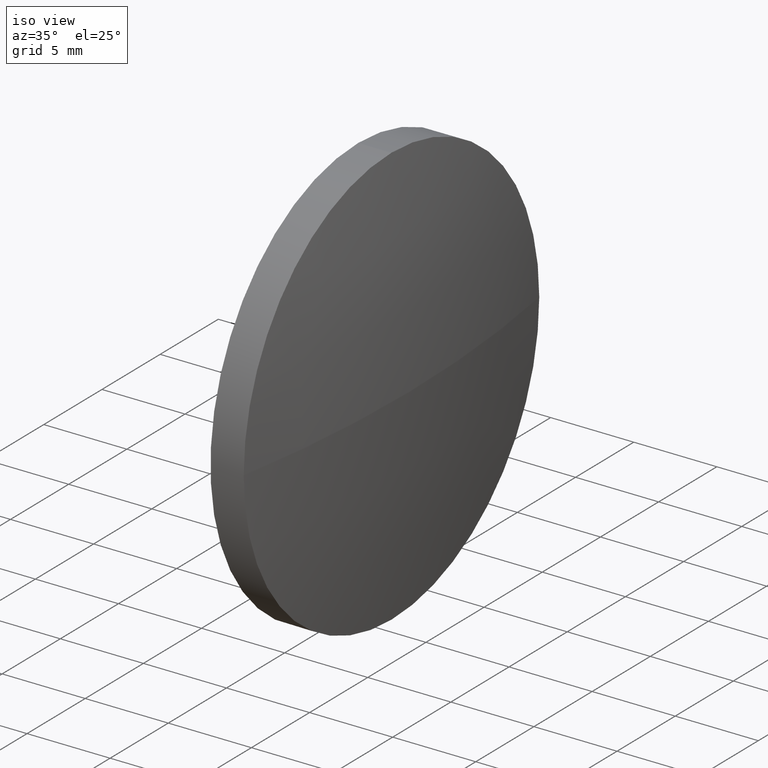
[diagram: clean part render]
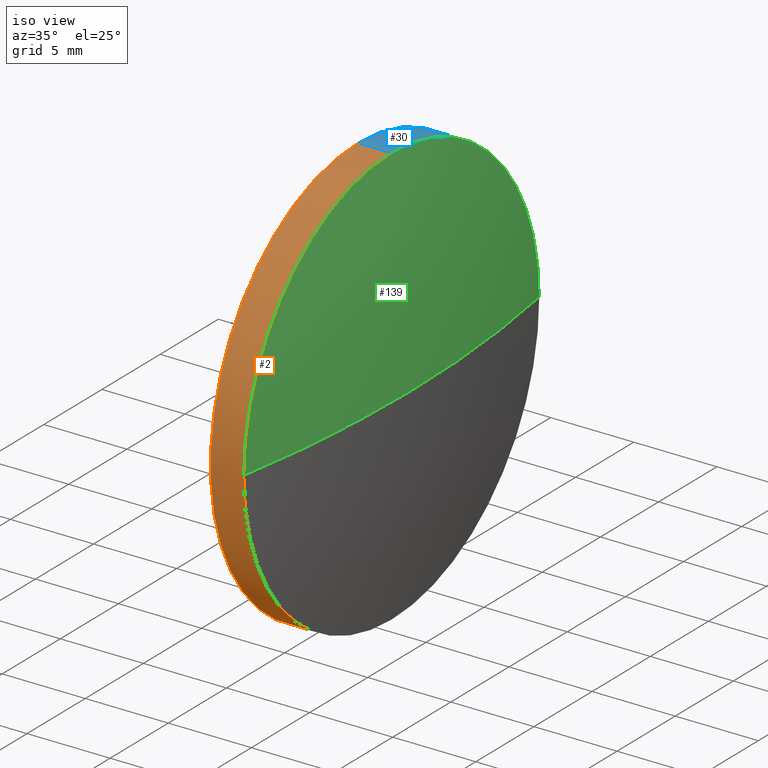
[diagram: same view with three faces highlighted in distinct colors, each labeled with its STEP entity id]
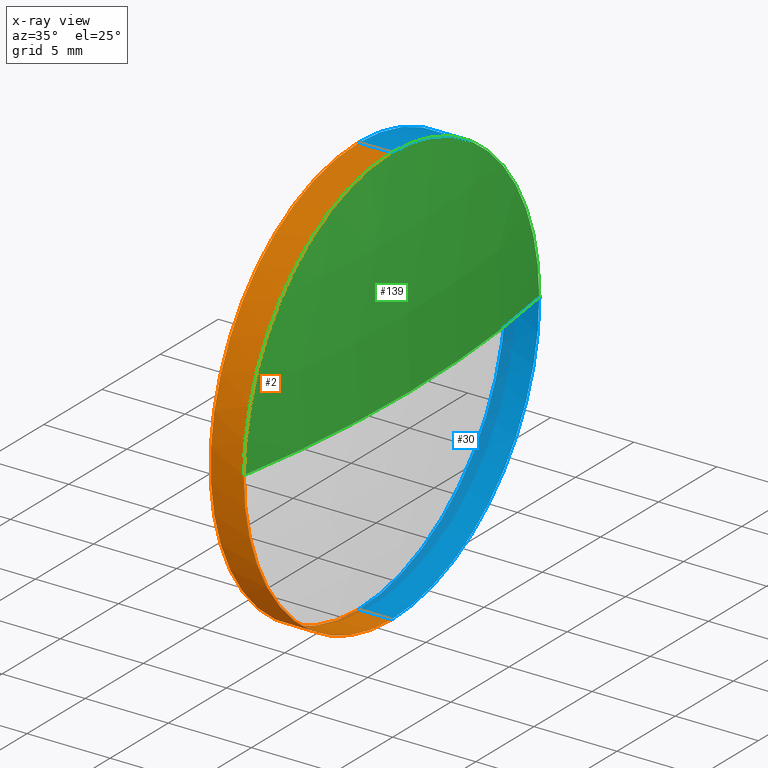
[diagram: x-ray of the same camera — body ghosted, the three highlighted faces saturated]
A machine part, iso view with three faces highlighted in distinct colors.
The next image is the same camera in x-ray (body ghosted, the three faces saturated) — at least one of them is partly hidden behind the body in this view.
Their STEP definitions:

[orange] entity #2 — the highlighted cylindrical surface (partial cylindrical patch) has radius 12.7 mm, axis along (-1, -0, -0).
#2 = ADVANCED_FACE ( 'NONE', ( #72 ), #60, .T. ) ;
#11 = DIRECTION ( 'NONE',  ( -1.000000000000000000, -0.0000000000000000000, -0.0000000000000000000 ) ) ;
#17 = AXIS2_PLACEMENT_3D ( 'NONE', #151, #38, #121 ) ;
#31 = AXIS2_PLACEMENT_3D ( 'NONE', #34, #47, #96 ) ;
#32 = LINE ( 'NONE', #157, #95 ) ;
#33 = AXIS2_PLACEMENT_3D ( 'NONE', #55, #11, #51 ) ;
#34 = CARTESIAN_POINT ( 'NONE',  ( 117.7645554762012000, 65.23355492641219700, 0.0000000000000000000 ) ) ;
#37 = EDGE_CURVE ( 'NONE', #64, #59, #172, .T. ) ;
#38 = DIRECTION ( 'NONE',  ( -1.000000000000000000, -0.0000000000000000000, -0.0000000000000000000 ) ) ;
#39 = CARTESIAN_POINT ( 'NONE',  ( 110.1653732284884500, 65.23355492641219700, 12.70000000000000300 ) ) ;
#40 = DIRECTION ( 'NONE',  ( -1.000000000000000000, -0.0000000000000000000, -0.0000000000000000000 ) ) ;
#42 = VECTOR ( 'NONE', #70, 1000.000000000000000 ) ;
#47 = DIRECTION ( 'NONE',  ( -1.000000000000000000, -0.0000000000000000000, -0.0000000000000000000 ) ) ;
#49 = VERTEX_POINT ( 'NONE', #66 ) ;
#51 = DIRECTION ( 'NONE',  ( 0.0000000000000000000, 0.0000000000000000000, 1.000000000000000000 ) ) ;
#55 = CARTESIAN_POINT ( 'NONE',  ( 117.7645554762012000, 65.23355492641219700, 0.0000000000000000000 ) ) ;
#59 = VERTEX_POINT ( 'NONE', #141 ) ;
#60 = CYLINDRICAL_SURFACE ( 'NONE', #17, 12.70000000000000300 ) ;
#64 = VERTEX_POINT ( 'NONE', #126 ) ;
#66 = CARTESIAN_POINT ( 'NONE',  ( 115.7645554762012000, 65.23355492641219700, 12.70000000000000300 ) ) ;
#68 = CIRCLE ( 'NONE', #33, 12.70000000000000300 ) ;
#70 = DIRECTION ( 'NONE',  ( -1.000000000000000000, -0.0000000000000000000, -0.0000000000000000000 ) ) ;
#72 = FACE_OUTER_BOUND ( 'NONE', #154, .T. ) ;
#76 = LINE ( 'NONE', #39, #42 ) ;
#78 = EDGE_CURVE ( 'NONE', #59, #136, #68, .T. ) ;
#84 = CARTESIAN_POINT ( 'NONE',  ( 117.7645554762012000, 65.23355492641219700, 12.70000000000000300 ) ) ;
#88 = CIRCLE ( 'NONE', #105, 12.70000000000000300 ) ;
#91 = EDGE_CURVE ( 'NONE', #64, #102, #32, .T. ) ;
#92 = EDGE_CURVE ( 'NONE', #136, #49, #76, .T. ) ;
#95 = VECTOR ( 'NONE', #145, 1000.000000000000000 ) ;
#96 = DIRECTION ( 'NONE',  ( 0.0000000000000000000, 0.0000000000000000000, 1.000000000000000000 ) ) ;
#99 = ORIENTED_EDGE ( 'NONE', *, *, #78, .T. ) ;
#102 = VERTEX_POINT ( 'NONE', #114 ) ;
#105 = AXIS2_PLACEMENT_3D ( 'NONE', #182, #40, #143 ) ;
#106 = ORIENTED_EDGE ( 'NONE', *, *, #91, .F. ) ;
#114 = CARTESIAN_POINT ( 'NONE',  ( 115.7645554762012000, 65.23355492641219700, -12.70000000000000300 ) ) ;
#121 = DIRECTION ( 'NONE',  ( 0.0000000000000000000, 0.0000000000000000000, 1.000000000000000000 ) ) ;
#123 = ORIENTED_EDGE ( 'NONE', *, *, #92, .T. ) ;
#126 = CARTESIAN_POINT ( 'NONE',  ( 117.7645554762012000, 65.23355492641219700, -12.70000000000000300 ) ) ;
#136 = VERTEX_POINT ( 'NONE', #84 ) ;
#140 = ORIENTED_EDGE ( 'NONE', *, *, #186, .F. ) ;
#141 = CARTESIAN_POINT ( 'NONE',  ( 117.7645554762012000, 52.53355492641222200, -1.555301434917136100E-015 ) ) ;
#143 = DIRECTION ( 'NONE',  ( 0.0000000000000000000, 0.0000000000000000000, 1.000000000000000000 ) ) ;
#145 = DIRECTION ( 'NONE',  ( -1.000000000000000000, -0.0000000000000000000, -0.0000000000000000000 ) ) ;
#151 = CARTESIAN_POINT ( 'NONE',  ( 110.1653732284884500, 65.23355492641219700, 0.0000000000000000000 ) ) ;
#154 = EDGE_LOOP ( 'NONE', ( #106, #174, #99, #123, #140 ) ) ;
#157 = CARTESIAN_POINT ( 'NONE',  ( 110.1653732284884500, 65.23355492641219700, -12.70000000000000300 ) ) ;
#172 = CIRCLE ( 'NONE', #31, 12.70000000000000300 ) ;
#174 = ORIENTED_EDGE ( 'NONE', *, *, #37, .T. ) ;
#182 = CARTESIAN_POINT ( 'NONE',  ( 115.7645554762012000, 65.23355492641219700, 0.0000000000000000000 ) ) ;
#186 = EDGE_CURVE ( 'NONE', #102, #49, #88, .T. ) ;

[blue] entity #30 — the highlighted cylindrical surface (partial cylindrical patch) has radius 12.7 mm, axis along (-1, -0, -0).
#9 = CIRCLE ( 'NONE', #48, 12.70000000000000300 ) ;
#14 = EDGE_LOOP ( 'NONE', ( #22, #63, #147, #169, #62 ) ) ;
#22 = ORIENTED_EDGE ( 'NONE', *, *, #127, .T. ) ;
#30 = ADVANCED_FACE ( 'NONE', ( #135 ), #132, .T. ) ;
#32 = LINE ( 'NONE', #157, #95 ) ;
#39 = CARTESIAN_POINT ( 'NONE',  ( 110.1653732284884500, 65.23355492641219700, 12.70000000000000300 ) ) ;
#42 = VECTOR ( 'NONE', #70, 1000.000000000000000 ) ;
#48 = AXIS2_PLACEMENT_3D ( 'NONE', #183, #69, #125 ) ;
#49 = VERTEX_POINT ( 'NONE', #66 ) ;
#53 = CIRCLE ( 'NONE', #77, 12.70000000000000300 ) ;
#62 = ORIENTED_EDGE ( 'NONE', *, *, #162, .T. ) ;
#63 = ORIENTED_EDGE ( 'NONE', *, *, #91, .T. ) ;
#64 = VERTEX_POINT ( 'NONE', #126 ) ;
#66 = CARTESIAN_POINT ( 'NONE',  ( 115.7645554762012000, 65.23355492641219700, 12.70000000000000300 ) ) ;
#69 = DIRECTION ( 'NONE',  ( -1.000000000000000000, -0.0000000000000000000, -0.0000000000000000000 ) ) ;
#70 = DIRECTION ( 'NONE',  ( -1.000000000000000000, -0.0000000000000000000, -0.0000000000000000000 ) ) ;
#76 = LINE ( 'NONE', #39, #42 ) ;
#77 = AXIS2_PLACEMENT_3D ( 'NONE', #86, #101, #170 ) ;
#84 = CARTESIAN_POINT ( 'NONE',  ( 117.7645554762012000, 65.23355492641219700, 12.70000000000000300 ) ) ;
#86 = CARTESIAN_POINT ( 'NONE',  ( 117.7645554762012000, 65.23355492641219700, 0.0000000000000000000 ) ) ;
#87 = CARTESIAN_POINT ( 'NONE',  ( 115.7645554762012000, 65.23355492641219700, 0.0000000000000000000 ) ) ;
#91 = EDGE_CURVE ( 'NONE', #64, #102, #32, .T. ) ;
#92 = EDGE_CURVE ( 'NONE', #136, #49, #76, .T. ) ;
#95 = VECTOR ( 'NONE', #145, 1000.000000000000000 ) ;
#97 = VERTEX_POINT ( 'NONE', #158 ) ;
#101 = DIRECTION ( 'NONE',  ( -1.000000000000000000, -0.0000000000000000000, -0.0000000000000000000 ) ) ;
#102 = VERTEX_POINT ( 'NONE', #114 ) ;
#114 = CARTESIAN_POINT ( 'NONE',  ( 115.7645554762012000, 65.23355492641219700, -12.70000000000000300 ) ) ;
#117 = AXIS2_PLACEMENT_3D ( 'NONE', #153, #150, #168 ) ;
#120 = AXIS2_PLACEMENT_3D ( 'NONE', #87, #184, #173 ) ;
#125 = DIRECTION ( 'NONE',  ( 0.0000000000000000000, 0.0000000000000000000, 1.000000000000000000 ) ) ;
#126 = CARTESIAN_POINT ( 'NONE',  ( 117.7645554762012000, 65.23355492641219700, -12.70000000000000300 ) ) ;
#127 = EDGE_CURVE ( 'NONE', #97, #64, #53, .T. ) ;
#132 = CYLINDRICAL_SURFACE ( 'NONE', #117, 12.70000000000000300 ) ;
#135 = FACE_OUTER_BOUND ( 'NONE', #14, .T. ) ;
#136 = VERTEX_POINT ( 'NONE', #84 ) ;
#145 = DIRECTION ( 'NONE',  ( -1.000000000000000000, -0.0000000000000000000, -0.0000000000000000000 ) ) ;
#147 = ORIENTED_EDGE ( 'NONE', *, *, #166, .F. ) ;
#148 = CIRCLE ( 'NONE', #120, 12.70000000000000300 ) ;
#150 = DIRECTION ( 'NONE',  ( -1.000000000000000000, -0.0000000000000000000, -0.0000000000000000000 ) ) ;
#153 = CARTESIAN_POINT ( 'NONE',  ( 110.1653732284884500, 65.23355492641219700, 0.0000000000000000000 ) ) ;
#157 = CARTESIAN_POINT ( 'NONE',  ( 110.1653732284884500, 65.23355492641219700, -12.70000000000000300 ) ) ;
#158 = CARTESIAN_POINT ( 'NONE',  ( 117.7645554762012000, 77.93355492641218500, 0.0000000000000000000 ) ) ;
#162 = EDGE_CURVE ( 'NONE', #136, #97, #9, .T. ) ;
#166 = EDGE_CURVE ( 'NONE', #49, #102, #148, .T. ) ;
#168 = DIRECTION ( 'NONE',  ( 0.0000000000000000000, 0.0000000000000000000, 1.000000000000000000 ) ) ;
#169 = ORIENTED_EDGE ( 'NONE', *, *, #92, .F. ) ;
#170 = DIRECTION ( 'NONE',  ( 0.0000000000000000000, 0.0000000000000000000, 1.000000000000000000 ) ) ;
#173 = DIRECTION ( 'NONE',  ( 0.0000000000000000000, 0.0000000000000000000, 1.000000000000000000 ) ) ;
#183 = CARTESIAN_POINT ( 'NONE',  ( 117.7645554762012000, 65.23355492641219700, 0.0000000000000000000 ) ) ;
#184 = DIRECTION ( 'NONE',  ( -1.000000000000000000, -0.0000000000000000000, -0.0000000000000000000 ) ) ;

[green] entity #139 — the highlighted spherical surface has radius 73.8636 mm.
#5 = CARTESIAN_POINT ( 'NONE',  ( 45.00091911256444600, 65.23355492641219700, 0.0000000000000000000 ) ) ;
#6 = CARTESIAN_POINT ( 'NONE',  ( 45.00091911256444600, 65.23355492641219700, 0.0000000000000000000 ) ) ;
#7 = CARTESIAN_POINT ( 'NONE',  ( 45.00091911256444600, 65.23355492641219700, 0.0000000000000000000 ) ) ;
#9 = CIRCLE ( 'NONE', #48, 12.70000000000000300 ) ;
#10 = DIRECTION ( 'NONE',  ( 0.0000000000000000000, 1.000000000000000000, 1.224646799147353200E-016 ) ) ;
#11 = DIRECTION ( 'NONE',  ( -1.000000000000000000, -0.0000000000000000000, -0.0000000000000000000 ) ) ;
#24 = DIRECTION ( 'NONE',  ( 1.000000000000000000, 0.0000000000000000000, 0.0000000000000000000 ) ) ;
#26 = CIRCLE ( 'NONE', #149, 73.86363636363674300 ) ;
#33 = AXIS2_PLACEMENT_3D ( 'NONE', #55, #11, #51 ) ;
#45 = EDGE_CURVE ( 'NONE', #119, #59, #118, .T. ) ;
#46 = EDGE_CURVE ( 'NONE', #119, #97, #26, .T. ) ;
#48 = AXIS2_PLACEMENT_3D ( 'NONE', #183, #69, #125 ) ;
#51 = DIRECTION ( 'NONE',  ( 0.0000000000000000000, 0.0000000000000000000, 1.000000000000000000 ) ) ;
#55 = CARTESIAN_POINT ( 'NONE',  ( 117.7645554762012000, 65.23355492641219700, 0.0000000000000000000 ) ) ;
#59 = VERTEX_POINT ( 'NONE', #141 ) ;
#61 = AXIS2_PLACEMENT_3D ( 'NONE', #5, #155, #10 ) ;
#67 = ORIENTED_EDGE ( 'NONE', *, *, #162, .F. ) ;
#68 = CIRCLE ( 'NONE', #33, 12.70000000000000300 ) ;
#69 = DIRECTION ( 'NONE',  ( -1.000000000000000000, -0.0000000000000000000, -0.0000000000000000000 ) ) ;
#78 = EDGE_CURVE ( 'NONE', #59, #136, #68, .T. ) ;
#82 = ORIENTED_EDGE ( 'NONE', *, *, #46, .T. ) ;
#84 = CARTESIAN_POINT ( 'NONE',  ( 117.7645554762012000, 65.23355492641219700, 12.70000000000000300 ) ) ;
#97 = VERTEX_POINT ( 'NONE', #158 ) ;
#98 = DIRECTION ( 'NONE',  ( 0.0000000000000000000, 1.000000000000000000, 0.0000000000000000000 ) ) ;
#108 = CARTESIAN_POINT ( 'NONE',  ( 118.8645554762011900, 65.23355492641219700, 0.0000000000000000000 ) ) ;
#110 = DIRECTION ( 'NONE',  ( -0.0000000000000000000, 0.0000000000000000000, -1.000000000000000000 ) ) ;
#115 = ORIENTED_EDGE ( 'NONE', *, *, #45, .F. ) ;
#118 = CIRCLE ( 'NONE', #61, 73.86363636363674300 ) ;
#119 = VERTEX_POINT ( 'NONE', #108 ) ;
#125 = DIRECTION ( 'NONE',  ( 0.0000000000000000000, 0.0000000000000000000, 1.000000000000000000 ) ) ;
#131 = ORIENTED_EDGE ( 'NONE', *, *, #78, .F. ) ;
#136 = VERTEX_POINT ( 'NONE', #84 ) ;
#137 = SPHERICAL_SURFACE ( 'NONE', #144, 73.86363636363674300 ) ;
#139 = ADVANCED_FACE ( 'NONE', ( #185 ), #137, .T. ) ;
#141 = CARTESIAN_POINT ( 'NONE',  ( 117.7645554762012000, 52.53355492641222200, -1.555301434917136100E-015 ) ) ;
#144 = AXIS2_PLACEMENT_3D ( 'NONE', #6, #110, #98 ) ;
#149 = AXIS2_PLACEMENT_3D ( 'NONE', #7, #171, #24 ) ;
#155 = DIRECTION ( 'NONE',  ( 0.0000000000000000000, 1.224646799147353200E-016, -1.000000000000000000 ) ) ;
#158 = CARTESIAN_POINT ( 'NONE',  ( 117.7645554762012000, 77.93355492641218500, 0.0000000000000000000 ) ) ;
#162 = EDGE_CURVE ( 'NONE', #136, #97, #9, .T. ) ;
#165 = EDGE_LOOP ( 'NONE', ( #115, #82, #67, #131 ) ) ;
#171 = DIRECTION ( 'NONE',  ( -0.0000000000000000000, 0.0000000000000000000, 1.000000000000000000 ) ) ;
#183 = CARTESIAN_POINT ( 'NONE',  ( 117.7645554762012000, 65.23355492641219700, 0.0000000000000000000 ) ) ;
#185 = FACE_OUTER_BOUND ( 'NONE', #165, .T. ) ;